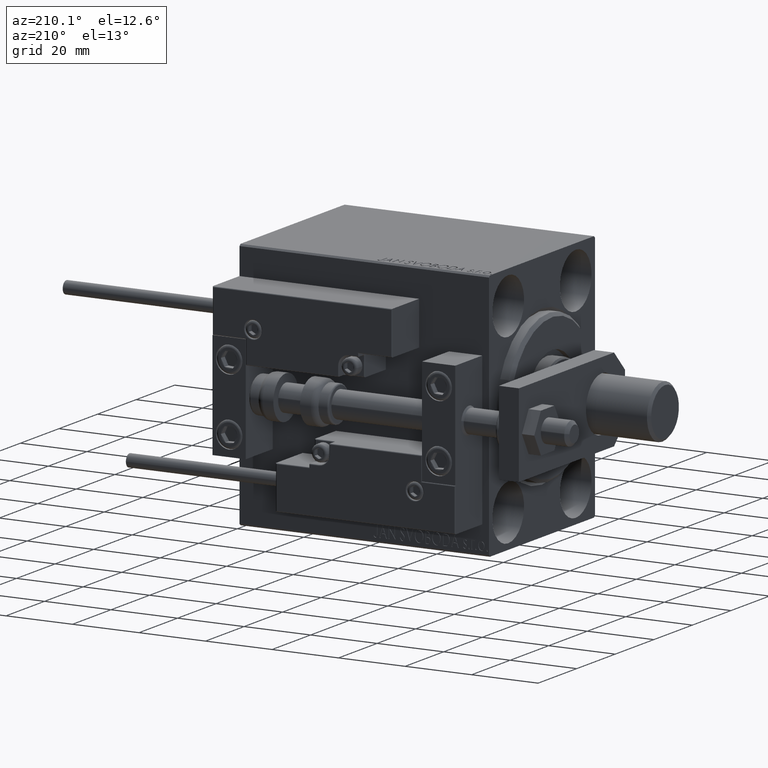
[diagram: clean part render]
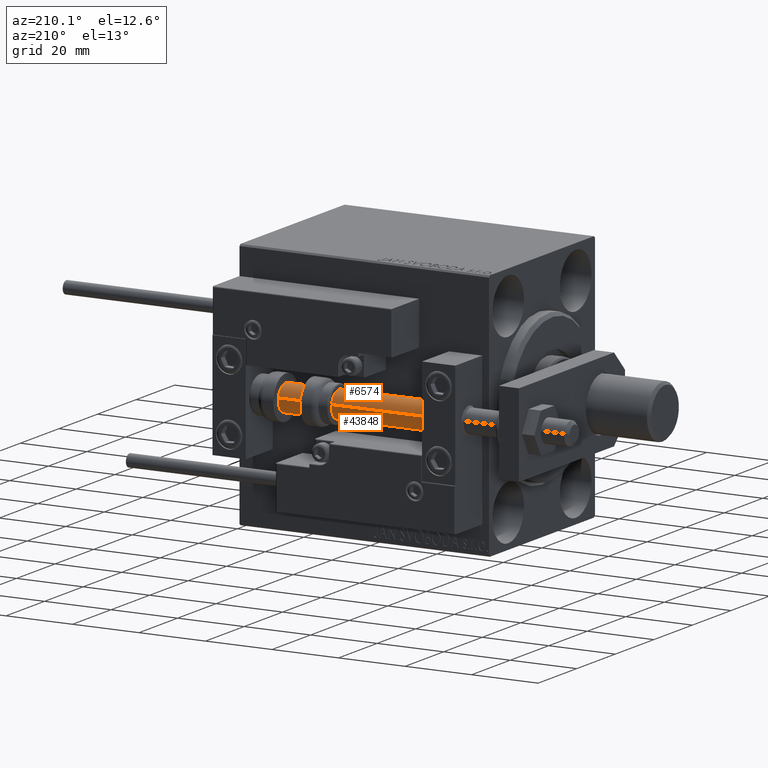
[diagram: same view with one multi-face feature highlighted, each face labeled with its STEP entity id]
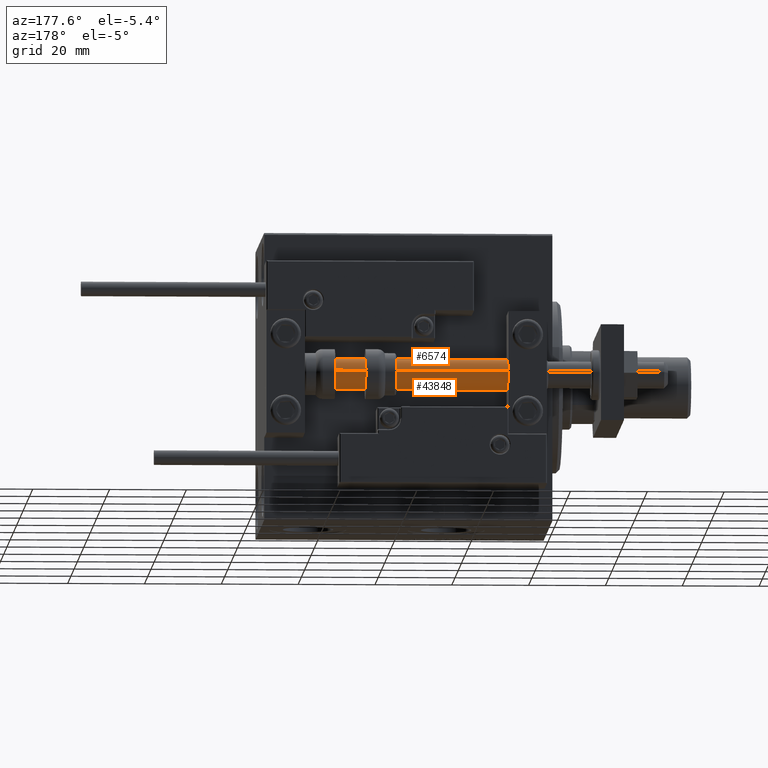
[diagram: same view with one multi-face feature highlighted, each face labeled with its STEP entity id]
A machine part, auxiliary view. The highlighted faces form ONE feature: a constant-radius fillet chain: 2 tangent blend faces with common blend radius 4 mm. The faces share edges in the B-rep.
A second angle (auxiliary view) of the same feature is appended — it is thin or edge-on in the first view.
Their STEP definitions:
[1] entity #6574 (Cylinder):
#851 = CYLINDRICAL_SURFACE ( 'NONE', #11826, 4.000000000000000000 ) ;
#2188 = CARTESIAN_POINT ( 'NONE',  ( 0.000000000000000000, 0.000000000000000000, 75.00000000000000000 ) ) ;
#4707 = DIRECTION ( 'NONE',  ( -1.000000000000000000, 0.000000000000000000, 0.000000000000000000 ) ) ;
#4865 = VERTEX_POINT ( 'NONE', #8558 ) ;
#5656 = CARTESIAN_POINT ( 'NONE',  ( 0.000000000000000000, 0.000000000000000000, 2.000000000000029310 ) ) ;
#5726 = VERTEX_POINT ( 'NONE', #36577 ) ;
#6574 = ADVANCED_FACE ( 'NONE', ( #24226 ), #851, .T. ) ;
#8401 = DIRECTION ( 'NONE',  ( -0.000000000000000000, -0.000000000000000000, -1.000000000000000000 ) ) ;
#8558 = CARTESIAN_POINT ( 'NONE',  ( 4.000000000000000000, 4.898587196589412829E-16, 2.000000000000029310 ) ) ;
#8634 = CIRCLE ( 'NONE', #34859, 4.000000000000000000 ) ;
#8900 = LINE ( 'NONE', #40226, #49477 ) ;
#9050 = DIRECTION ( 'NONE',  ( -0.000000000000000000, -0.000000000000000000, -1.000000000000000000 ) ) ;
#11826 = AXIS2_PLACEMENT_3D ( 'NONE', #20365, #24717, #4707 ) ;
#12203 = AXIS2_PLACEMENT_3D ( 'NONE', #5656, #28536, #48779 ) ;
#14429 = CARTESIAN_POINT ( 'NONE',  ( -4.000000000000000000, 0.000000000000000000, 2.000000000000029310 ) ) ;
#14718 = VECTOR ( 'NONE', #9050, 1000.000000000000000 ) ;
#16709 = ORIENTED_EDGE ( 'NONE', *, *, #46443, .F. ) ;
#20365 = CARTESIAN_POINT ( 'NONE',  ( 0.000000000000000000, 0.000000000000000000, 75.00000000000000000 ) ) ;
#22499 = ORIENTED_EDGE ( 'NONE', *, *, #39436, .T. ) ;
#24226 = FACE_OUTER_BOUND ( 'NONE', #29853, .T. ) ;
#24717 = DIRECTION ( 'NONE',  ( -0.000000000000000000, -0.000000000000000000, -1.000000000000000000 ) ) ;
#25052 = DIRECTION ( 'NONE',  ( 0.000000000000000000, 0.000000000000000000, 1.000000000000000000 ) ) ;
#27020 = VERTEX_POINT ( 'NONE', #14429 ) ;
#28536 = DIRECTION ( 'NONE',  ( -0.000000000000000000, -0.000000000000000000, 1.000000000000000000 ) ) ;
#29853 = EDGE_LOOP ( 'NONE', ( #16709, #22499, #42437, #36307 ) ) ;
#30777 = EDGE_CURVE ( 'NONE', #4865, #27020, #35132, .T. ) ;
#32419 = LINE ( 'NONE', #44225, #14718 ) ;
#32984 = VERTEX_POINT ( 'NONE', #41445 ) ;
#33009 = DIRECTION ( 'NONE',  ( 1.000000000000000000, 0.000000000000000000, 0.000000000000000000 ) ) ;
#34096 = EDGE_CURVE ( 'NONE', #5726, #27020, #32419, .T. ) ;
#34859 = AXIS2_PLACEMENT_3D ( 'NONE', #2188, #25052, #33009 ) ;
#35132 = CIRCLE ( 'NONE', #12203, 4.000000000000000000 ) ;
#36307 = ORIENTED_EDGE ( 'NONE', *, *, #34096, .F. ) ;
#36577 = CARTESIAN_POINT ( 'NONE',  ( -4.000000000000000000, 0.000000000000000000, 75.00000000000000000 ) ) ;
#39436 = EDGE_CURVE ( 'NONE', #32984, #4865, #8900, .T. ) ;
#40226 = CARTESIAN_POINT ( 'NONE',  ( 4.000000000000000000, 4.898587196589412829E-16, 75.00000000000000000 ) ) ;
#41445 = CARTESIAN_POINT ( 'NONE',  ( 4.000000000000000000, 4.898587196589412829E-16, 75.00000000000000000 ) ) ;
#42437 = ORIENTED_EDGE ( 'NONE', *, *, #30777, .T. ) ;
#44225 = CARTESIAN_POINT ( 'NONE',  ( -4.000000000000000000, 0.000000000000000000, 75.00000000000000000 ) ) ;
#46443 = EDGE_CURVE ( 'NONE', #32984, #5726, #8634, .T. ) ;
#48779 = DIRECTION ( 'NONE',  ( 1.000000000000000000, 0.000000000000000000, 0.000000000000000000 ) ) ;
#49477 = VECTOR ( 'NONE', #8401, 1000.000000000000000 ) ;
[2] entity #43848 (Cylinder):
#564 = EDGE_LOOP ( 'NONE', ( #5242, #40527, #7521, #45769 ) ) ;
#3520 = CIRCLE ( 'NONE', #10928, 4.000000000000000000 ) ;
#4865 = VERTEX_POINT ( 'NONE', #8558 ) ;
#5242 = ORIENTED_EDGE ( 'NONE', *, *, #39436, .F. ) ;
#5726 = VERTEX_POINT ( 'NONE', #36577 ) ;
#7521 = ORIENTED_EDGE ( 'NONE', *, *, #34096, .T. ) ;
#7603 = EDGE_CURVE ( 'NONE', #27020, #4865, #3520, .T. ) ;
#8401 = DIRECTION ( 'NONE',  ( -0.000000000000000000, -0.000000000000000000, -1.000000000000000000 ) ) ;
#8558 = CARTESIAN_POINT ( 'NONE',  ( 4.000000000000000000, 4.898587196589412829E-16, 2.000000000000029310 ) ) ;
#8561 = AXIS2_PLACEMENT_3D ( 'NONE', #38672, #35597, #15307 ) ;
#8900 = LINE ( 'NONE', #40226, #49477 ) ;
#9050 = DIRECTION ( 'NONE',  ( -0.000000000000000000, -0.000000000000000000, -1.000000000000000000 ) ) ;
#10761 = CARTESIAN_POINT ( 'NONE',  ( 0.000000000000000000, 0.000000000000000000, 75.00000000000000000 ) ) ;
#10928 = AXIS2_PLACEMENT_3D ( 'NONE', #30855, #41184, #15445 ) ;
#14429 = CARTESIAN_POINT ( 'NONE',  ( -4.000000000000000000, 0.000000000000000000, 2.000000000000029310 ) ) ;
#14718 = VECTOR ( 'NONE', #9050, 1000.000000000000000 ) ;
#15052 = FACE_OUTER_BOUND ( 'NONE', #564, .T. ) ;
#15307 = DIRECTION ( 'NONE',  ( -1.000000000000000000, 0.000000000000000000, 0.000000000000000000 ) ) ;
#15445 = DIRECTION ( 'NONE',  ( 1.000000000000000000, 0.000000000000000000, 0.000000000000000000 ) ) ;
#27020 = VERTEX_POINT ( 'NONE', #14429 ) ;
#27392 = EDGE_CURVE ( 'NONE', #5726, #32984, #30100, .T. ) ;
#30100 = CIRCLE ( 'NONE', #42418, 4.000000000000000000 ) ;
#30705 = CYLINDRICAL_SURFACE ( 'NONE', #8561, 4.000000000000000000 ) ;
#30855 = CARTESIAN_POINT ( 'NONE',  ( 0.000000000000000000, 0.000000000000000000, 2.000000000000029310 ) ) ;
#32419 = LINE ( 'NONE', #44225, #14718 ) ;
#32984 = VERTEX_POINT ( 'NONE', #41445 ) ;
#34096 = EDGE_CURVE ( 'NONE', #5726, #27020, #32419, .T. ) ;
#35597 = DIRECTION ( 'NONE',  ( -0.000000000000000000, -0.000000000000000000, -1.000000000000000000 ) ) ;
#36577 = CARTESIAN_POINT ( 'NONE',  ( -4.000000000000000000, 0.000000000000000000, 75.00000000000000000 ) ) ;
#38672 = CARTESIAN_POINT ( 'NONE',  ( 0.000000000000000000, 0.000000000000000000, 75.00000000000000000 ) ) ;
#38747 = DIRECTION ( 'NONE',  ( 0.000000000000000000, 0.000000000000000000, 1.000000000000000000 ) ) ;
#39436 = EDGE_CURVE ( 'NONE', #32984, #4865, #8900, .T. ) ;
#40226 = CARTESIAN_POINT ( 'NONE',  ( 4.000000000000000000, 4.898587196589412829E-16, 75.00000000000000000 ) ) ;
#40527 = ORIENTED_EDGE ( 'NONE', *, *, #27392, .F. ) ;
#41184 = DIRECTION ( 'NONE',  ( -0.000000000000000000, -0.000000000000000000, 1.000000000000000000 ) ) ;
#41445 = CARTESIAN_POINT ( 'NONE',  ( 4.000000000000000000, 4.898587196589412829E-16, 75.00000000000000000 ) ) ;
#42418 = AXIS2_PLACEMENT_3D ( 'NONE', #10761, #38747, #46438 ) ;
#43848 = ADVANCED_FACE ( 'NONE', ( #15052 ), #30705, .T. ) ;
#44225 = CARTESIAN_POINT ( 'NONE',  ( -4.000000000000000000, 0.000000000000000000, 75.00000000000000000 ) ) ;
#45769 = ORIENTED_EDGE ( 'NONE', *, *, #7603, .T. ) ;
#46438 = DIRECTION ( 'NONE',  ( 1.000000000000000000, 0.000000000000000000, 0.000000000000000000 ) ) ;
#49477 = VECTOR ( 'NONE', #8401, 1000.000000000000000 ) ;